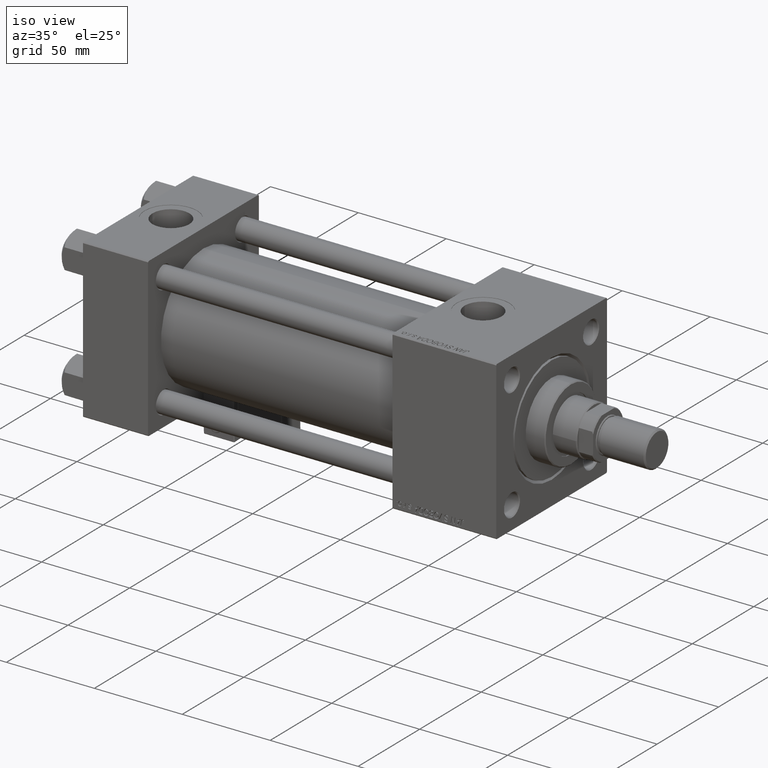
[diagram: clean part render]
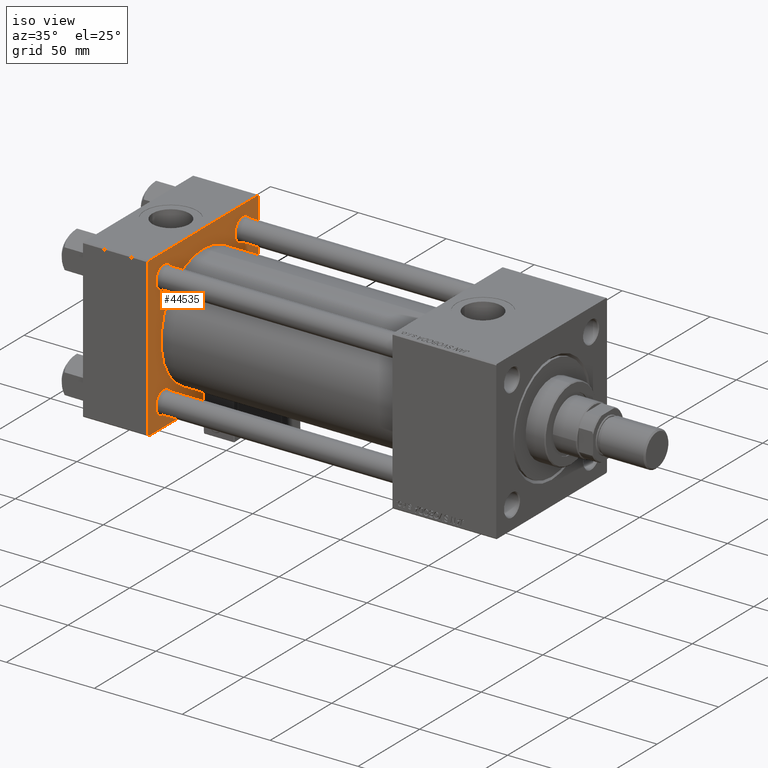
[diagram: same view with one face highlighted and labeled with its STEP entity id]
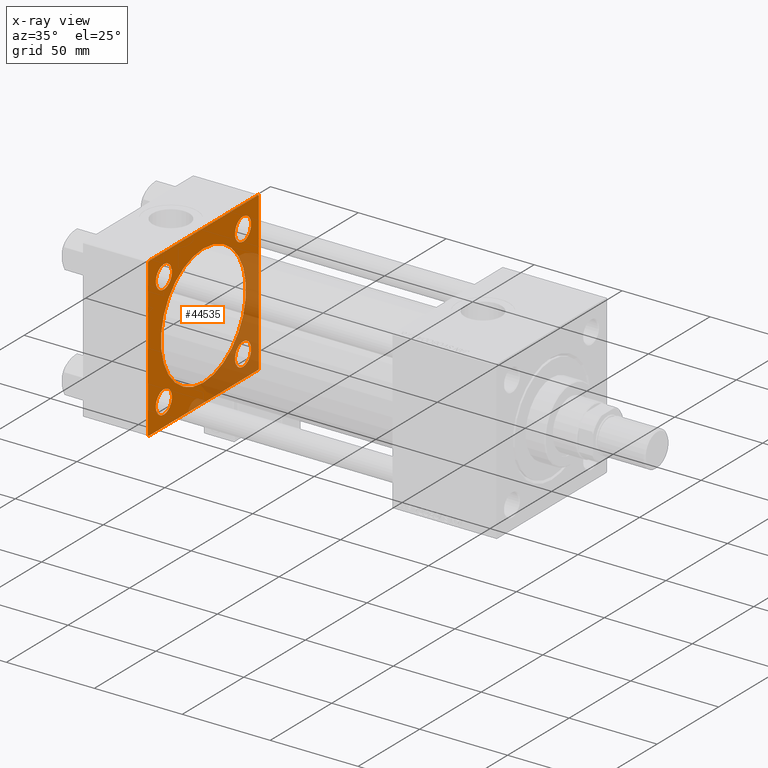
[diagram: x-ray of the same camera — body ghosted, the highlighted face saturated]
A machine part, iso view. The second image highlights one B-rep face of the part: STEP entity #44535.
The next image is the same camera in x-ray: the body ghosted, the highlighted face saturated — about 31% of this face is hidden behind the body in this view.
In plain terms, the highlighted planar face has unit normal (-1, 0, 0).
Its self-contained STEP definition (entity closure, byte-faithful):
#121 = VERTEX_POINT ( 'NONE', #46966 ) ;
#359 = LINE ( 'NONE', #34561, #5356 ) ;
#621 = CARTESIAN_POINT ( 'NONE',  ( 37.00000000000000000, -32.14999999999997726, 38.65000000000007674 ) ) ;
#681 = CARTESIAN_POINT ( 'NONE',  ( 37.00000000000000000, 44.99999999999998579, -44.99999999999998579 ) ) ;
#753 = LINE ( 'NONE', #38825, #26578 ) ;
#900 = CIRCLE ( 'NONE', #36143, 6.500000000000061284 ) ;
#1019 = AXIS2_PLACEMENT_3D ( 'NONE', #53210, #52938, #11015 ) ;
#1241 = LINE ( 'NONE', #34358, #15888 ) ;
#2458 = AXIS2_PLACEMENT_3D ( 'NONE', #26376, #51213, #13445 ) ;
#2502 = DIRECTION ( 'NONE',  ( -1.000000000000000000, 0.000000000000000000, -0.000000000000000000 ) ) ;
#2739 = CIRCLE ( 'NONE', #16852, 6.500000000000061284 ) ;
#2867 = DIRECTION ( 'NONE',  ( 0.000000000000000000, 0.000000000000000000, 1.000000000000000000 ) ) ;
#3612 = FACE_OUTER_BOUND ( 'NONE', #50820, .T. ) ;
#3666 = CIRCLE ( 'NONE', #1019, 6.500000000000061284 ) ;
#5356 = VECTOR ( 'NONE', #51389, 1000.000000000000114 ) ;
#5690 = CARTESIAN_POINT ( 'NONE',  ( 37.00000000000000000, -45.00000000000000000, -44.49999999999995737 ) ) ;
#6043 = CARTESIAN_POINT ( 'NONE',  ( 37.00000000000000711, -2.602085213965210642E-15, 0.000000000000000000 ) ) ;
#6364 = EDGE_CURVE ( 'NONE', #50095, #32201, #27291, .T. ) ;
#6937 = FACE_BOUND ( 'NONE', #43227, .T. ) ;
#7088 = CARTESIAN_POINT ( 'NONE',  ( 37.00000000000000000, -32.14999999999997726, -25.64999999999994884 ) ) ;
#8515 = ORIENTED_EDGE ( 'NONE', *, *, #15086, .T. ) ;
#8973 = CARTESIAN_POINT ( 'NONE',  ( 37.00000000000000000, 32.14999999999999147, 25.64999999999994529 ) ) ;
#9017 = CARTESIAN_POINT ( 'NONE',  ( 37.00000000000000711, -2.602085213965210642E-15, 0.000000000000000000 ) ) ;
#9680 = AXIS2_PLACEMENT_3D ( 'NONE', #38302, #12673, #33623 ) ;
#10031 = CARTESIAN_POINT ( 'NONE',  ( 37.00000000000000000, 32.14999999999999147, -25.64999999999994529 ) ) ;
#10852 = EDGE_CURVE ( 'NONE', #121, #53844, #29381, .T. ) ;
#10956 = VERTEX_POINT ( 'NONE', #8973 ) ;
#11015 = DIRECTION ( 'NONE',  ( 0.000000000000000000, 0.000000000000000000, 1.000000000000000000 ) ) ;
#11074 = CARTESIAN_POINT ( 'NONE',  ( 37.00000000000000000, 32.14999999999999147, 32.15000000000000568 ) ) ;
#11168 = VERTEX_POINT ( 'NONE', #52512 ) ;
#11225 = EDGE_LOOP ( 'NONE', ( #8515, #48789 ) ) ;
#12449 = EDGE_CURVE ( 'NONE', #48213, #10956, #43041, .T. ) ;
#12673 = DIRECTION ( 'NONE',  ( -1.000000000000000000, 0.000000000000000000, -0.000000000000000000 ) ) ;
#12886 = VERTEX_POINT ( 'NONE', #32777 ) ;
#13269 = EDGE_CURVE ( 'NONE', #38490, #11168, #22796, .T. ) ;
#13445 = DIRECTION ( 'NONE',  ( 0.000000000000000000, 0.000000000000000000, 1.000000000000000000 ) ) ;
#13657 = VERTEX_POINT ( 'NONE', #10031 ) ;
#13742 = VERTEX_POINT ( 'NONE', #45028 ) ;
#13992 = AXIS2_PLACEMENT_3D ( 'NONE', #11074, #2502, #45275 ) ;
#14725 = DIRECTION ( 'NONE',  ( -0.000000000000000000, -0.7071067811865425767, -0.7071067811865524577 ) ) ;
#15086 = EDGE_CURVE ( 'NONE', #34230, #13657, #29760, .T. ) ;
#15173 = ORIENTED_EDGE ( 'NONE', *, *, #15434, .T. ) ;
#15242 = DIRECTION ( 'NONE',  ( 0.000000000000000000, 0.000000000000000000, 1.000000000000000000 ) ) ;
#15434 = EDGE_CURVE ( 'NONE', #13742, #12886, #22709, .T. ) ;
#15888 = VECTOR ( 'NONE', #34634, 1000.000000000000000 ) ;
#16852 = AXIS2_PLACEMENT_3D ( 'NONE', #19372, #36185, #15242 ) ;
#17072 = EDGE_CURVE ( 'NONE', #53844, #13742, #22756, .T. ) ;
#17995 = VERTEX_POINT ( 'NONE', #5690 ) ;
#18003 = EDGE_CURVE ( 'NONE', #11168, #38490, #49250, .T. ) ;
#18351 = EDGE_LOOP ( 'NONE', ( #28857, #46801 ) ) ;
#19173 = EDGE_LOOP ( 'NONE', ( #20451, #54001 ) ) ;
#19183 = VERTEX_POINT ( 'NONE', #35093 ) ;
#19329 = AXIS2_PLACEMENT_3D ( 'NONE', #9017, #47345, #22232 ) ;
#19371 = ORIENTED_EDGE ( 'NONE', *, *, #6364, .T. ) ;
#19372 = CARTESIAN_POINT ( 'NONE',  ( 37.00000000000000000, 32.14999999999999147, 32.15000000000000568 ) ) ;
#19621 = FACE_BOUND ( 'NONE', #19173, .T. ) ;
#19894 = DIRECTION ( 'NONE',  ( -0.000000000000000000, 0.000000000000000000, 1.000000000000000000 ) ) ;
#20207 = ORIENTED_EDGE ( 'NONE', *, *, #18003, .F. ) ;
#20451 = ORIENTED_EDGE ( 'NONE', *, *, #45080, .T. ) ;
#21124 = CIRCLE ( 'NONE', #39613, 6.500000000000061284 ) ;
#21883 = CARTESIAN_POINT ( 'NONE',  ( 37.00000000000000000, 32.14999999999999147, 38.65000000000006963 ) ) ;
#22033 = EDGE_CURVE ( 'NONE', #17995, #28510, #359, .T. ) ;
#22097 = VERTEX_POINT ( 'NONE', #621 ) ;
#22173 = EDGE_CURVE ( 'NONE', #121, #48712, #51927, .T. ) ;
#22232 = DIRECTION ( 'NONE',  ( 0.000000000000000000, 0.000000000000000000, 1.000000000000000000 ) ) ;
#22370 = CARTESIAN_POINT ( 'NONE',  ( 37.00000000000000000, 44.99999999999998579, -44.49999999999995737 ) ) ;
#22709 = LINE ( 'NONE', #27383, #25344 ) ;
#22756 = LINE ( 'NONE', #44551, #30738 ) ;
#22796 = CIRCLE ( 'NONE', #28047, 34.50000000000000000 ) ;
#22815 = DIRECTION ( 'NONE',  ( -0.000000000000000000, 0.7071067811865474617, 0.7071067811865474617 ) ) ;
#23171 = EDGE_CURVE ( 'NONE', #10956, #48213, #2739, .T. ) ;
#23486 = DIRECTION ( 'NONE',  ( 0.000000000000000000, 0.000000000000000000, -1.000000000000000000 ) ) ;
#23722 = ORIENTED_EDGE ( 'NONE', *, *, #45167, .T. ) ;
#23725 = DIRECTION ( 'NONE',  ( -1.000000000000000000, 0.000000000000000000, -0.000000000000000000 ) ) ;
#23745 = DIRECTION ( 'NONE',  ( -1.000000000000000000, 0.000000000000000000, -0.000000000000000000 ) ) ;
#24154 = AXIS2_PLACEMENT_3D ( 'NONE', #52165, #23725, #52439 ) ;
#24246 = ORIENTED_EDGE ( 'NONE', *, *, #13269, .F. ) ;
#24292 = CARTESIAN_POINT ( 'NONE',  ( 37.00000000000000000, 44.49999999999998579, -44.99999999999998579 ) ) ;
#24567 = FACE_BOUND ( 'NONE', #52826, .T. ) ;
#24983 = LINE ( 'NONE', #681, #41706 ) ;
#25231 = CARTESIAN_POINT ( 'NONE',  ( 37.00000000000000000, -44.49999999999995737, -45.00000000000000000 ) ) ;
#25285 = ORIENTED_EDGE ( 'NONE', *, *, #42276, .T. ) ;
#25344 = VECTOR ( 'NONE', #14725, 1000.000000000000114 ) ;
#26376 = CARTESIAN_POINT ( 'NONE',  ( 37.00000000000000000, 32.14999999999999147, -32.15000000000000568 ) ) ;
#26578 = VECTOR ( 'NONE', #22815, 1000.000000000000114 ) ;
#27291 = CIRCLE ( 'NONE', #9680, 6.500000000000061284 ) ;
#27383 = CARTESIAN_POINT ( 'NONE',  ( 37.00000000000000000, -45.00000000000000711, 44.49999999999997158 ) ) ;
#27874 = FACE_BOUND ( 'NONE', #11225, .T. ) ;
#27959 = DIRECTION ( 'NONE',  ( 0.000000000000000000, -1.000000000000000000, -1.541976423090495387E-16 ) ) ;
#28047 = AXIS2_PLACEMENT_3D ( 'NONE', #6043, #35543, #43570 ) ;
#28510 = VERTEX_POINT ( 'NONE', #25231 ) ;
#28857 = ORIENTED_EDGE ( 'NONE', *, *, #23171, .T. ) ;
#29381 = LINE ( 'NONE', #46492, #51778 ) ;
#29718 = ORIENTED_EDGE ( 'NONE', *, *, #22033, .T. ) ;
#29760 = CIRCLE ( 'NONE', #2458, 6.500000000000061284 ) ;
#30043 = ORIENTED_EDGE ( 'NONE', *, *, #10852, .T. ) ;
#30738 = VECTOR ( 'NONE', #27959, 1000.000000000000000 ) ;
#30956 = CARTESIAN_POINT ( 'NONE',  ( 37.00000000000000000, 44.99999999999998579, 45.00000000000001421 ) ) ;
#31457 = ORIENTED_EDGE ( 'NONE', *, *, #42365, .T. ) ;
#32168 = EDGE_CURVE ( 'NONE', #13657, #34230, #32944, .T. ) ;
#32201 = VERTEX_POINT ( 'NONE', #47771 ) ;
#32658 = ORIENTED_EDGE ( 'NONE', *, *, #50939, .F. ) ;
#32777 = CARTESIAN_POINT ( 'NONE',  ( 37.00000000000000000, -45.00000000000000711, 44.49999999999997158 ) ) ;
#32944 = CIRCLE ( 'NONE', #24154, 6.500000000000061284 ) ;
#33254 = CARTESIAN_POINT ( 'NONE',  ( 37.00000000000000711, 1.622946243093158675E-15, -34.50000000000000000 ) ) ;
#33623 = DIRECTION ( 'NONE',  ( 0.000000000000000000, 0.000000000000000000, 1.000000000000000000 ) ) ;
#34230 = VERTEX_POINT ( 'NONE', #54618 ) ;
#34358 = CARTESIAN_POINT ( 'NONE',  ( 37.00000000000000000, -45.00000000000000711, 45.00000000000000000 ) ) ;
#34499 = AXIS2_PLACEMENT_3D ( 'NONE', #49676, #23745, #19894 ) ;
#34561 = CARTESIAN_POINT ( 'NONE',  ( 37.00000000000000000, -44.49999999999998579, -45.00000000000000000 ) ) ;
#34634 = DIRECTION ( 'NONE',  ( 0.000000000000000000, 7.709882115452476934E-17, -1.000000000000000000 ) ) ;
#35093 = CARTESIAN_POINT ( 'NONE',  ( 37.00000000000000000, -32.14999999999997726, 25.64999999999994884 ) ) ;
#35472 = DIRECTION ( 'NONE',  ( 0.000000000000000000, 0.000000000000000000, 1.000000000000000000 ) ) ;
#35543 = DIRECTION ( 'NONE',  ( 1.000000000000000000, -0.000000000000000000, 0.000000000000000000 ) ) ;
#35977 = EDGE_CURVE ( 'NONE', #22097, #19183, #21124, .T. ) ;
#36143 = AXIS2_PLACEMENT_3D ( 'NONE', #48933, #40934, #2867 ) ;
#36167 = FACE_BOUND ( 'NONE', #18351, .T. ) ;
#36185 = DIRECTION ( 'NONE',  ( -1.000000000000000000, 0.000000000000000000, -0.000000000000000000 ) ) ;
#38302 = CARTESIAN_POINT ( 'NONE',  ( 37.00000000000000000, -32.14999999999997726, -32.15000000000001279 ) ) ;
#38335 = VERTEX_POINT ( 'NONE', #24292 ) ;
#38490 = VERTEX_POINT ( 'NONE', #33254 ) ;
#38637 = CARTESIAN_POINT ( 'NONE',  ( 37.00000000000000000, 44.49999999999998579, 45.00000000000001421 ) ) ;
#38825 = CARTESIAN_POINT ( 'NONE',  ( 37.00000000000000000, 44.99999999999998579, -44.49999999999998579 ) ) ;
#39432 = ORIENTED_EDGE ( 'NONE', *, *, #22173, .F. ) ;
#39613 = AXIS2_PLACEMENT_3D ( 'NONE', #52569, #43762, #35472 ) ;
#40568 = VECTOR ( 'NONE', #23486, 1000.000000000000000 ) ;
#40934 = DIRECTION ( 'NONE',  ( -1.000000000000000000, 0.000000000000000000, -0.000000000000000000 ) ) ;
#41706 = VECTOR ( 'NONE', #46241, 1000.000000000000000 ) ;
#42276 = EDGE_CURVE ( 'NONE', #12886, #17995, #1241, .T. ) ;
#42365 = EDGE_CURVE ( 'NONE', #32201, #50095, #900, .T. ) ;
#43041 = CIRCLE ( 'NONE', #13992, 6.500000000000061284 ) ;
#43227 = EDGE_LOOP ( 'NONE', ( #20207, #24246 ) ) ;
#43570 = DIRECTION ( 'NONE',  ( 0.000000000000000000, 0.000000000000000000, 1.000000000000000000 ) ) ;
#43762 = DIRECTION ( 'NONE',  ( -1.000000000000000000, 0.000000000000000000, -0.000000000000000000 ) ) ;
#44174 = ORIENTED_EDGE ( 'NONE', *, *, #17072, .T. ) ;
#44535 = ADVANCED_FACE ( 'NONE', ( #24567, #27874, #19621, #36167, #6937, #3612 ), #44729, .F. ) ;
#44551 = CARTESIAN_POINT ( 'NONE',  ( 37.00000000000000000, 44.99999999999998579, 45.00000000000001421 ) ) ;
#44729 = PLANE ( 'NONE',  #34499 ) ;
#45028 = CARTESIAN_POINT ( 'NONE',  ( 37.00000000000000000, -44.49999999999995737, 45.00000000000000000 ) ) ;
#45080 = EDGE_CURVE ( 'NONE', #19183, #22097, #3666, .T. ) ;
#45167 = EDGE_CURVE ( 'NONE', #38335, #48712, #753, .T. ) ;
#45275 = DIRECTION ( 'NONE',  ( 0.000000000000000000, 0.000000000000000000, 1.000000000000000000 ) ) ;
#46241 = DIRECTION ( 'NONE',  ( 0.000000000000000000, -1.000000000000000000, -1.541976423090495633E-16 ) ) ;
#46492 = CARTESIAN_POINT ( 'NONE',  ( 37.00000000000000000, 44.49999999999998579, 45.00000000000001421 ) ) ;
#46801 = ORIENTED_EDGE ( 'NONE', *, *, #12449, .T. ) ;
#46966 = CARTESIAN_POINT ( 'NONE',  ( 37.00000000000000000, 44.99999999999998579, 44.50000000000001421 ) ) ;
#47345 = DIRECTION ( 'NONE',  ( 1.000000000000000000, -0.000000000000000000, 0.000000000000000000 ) ) ;
#47771 = CARTESIAN_POINT ( 'NONE',  ( 37.00000000000000000, -32.14999999999997726, -38.65000000000007674 ) ) ;
#48213 = VERTEX_POINT ( 'NONE', #21883 ) ;
#48712 = VERTEX_POINT ( 'NONE', #22370 ) ;
#48789 = ORIENTED_EDGE ( 'NONE', *, *, #32168, .T. ) ;
#48933 = CARTESIAN_POINT ( 'NONE',  ( 37.00000000000000000, -32.14999999999997726, -32.15000000000001279 ) ) ;
#49250 = CIRCLE ( 'NONE', #19329, 34.50000000000000000 ) ;
#49676 = CARTESIAN_POINT ( 'NONE',  ( 37.00000000000000000, 0.000000000000000000, 0.000000000000000000 ) ) ;
#50095 = VERTEX_POINT ( 'NONE', #7088 ) ;
#50619 = DIRECTION ( 'NONE',  ( 0.000000000000000000, -0.7071067811865474617, 0.7071067811865474617 ) ) ;
#50820 = EDGE_LOOP ( 'NONE', ( #32658, #23722, #39432, #30043, #44174, #15173, #25285, #29718 ) ) ;
#50939 = EDGE_CURVE ( 'NONE', #38335, #28510, #24983, .T. ) ;
#51213 = DIRECTION ( 'NONE',  ( -1.000000000000000000, 0.000000000000000000, -0.000000000000000000 ) ) ;
#51389 = DIRECTION ( 'NONE',  ( 0.000000000000000000, 0.7071067811865474617, -0.7071067811865474617 ) ) ;
#51778 = VECTOR ( 'NONE', #50619, 1000.000000000000114 ) ;
#51927 = LINE ( 'NONE', #30956, #40568 ) ;
#52165 = CARTESIAN_POINT ( 'NONE',  ( 37.00000000000000000, 32.14999999999999147, -32.15000000000000568 ) ) ;
#52439 = DIRECTION ( 'NONE',  ( 0.000000000000000000, 0.000000000000000000, 1.000000000000000000 ) ) ;
#52512 = CARTESIAN_POINT ( 'NONE',  ( 37.00000000000000711, -2.602085213965210642E-15, 34.50000000000000000 ) ) ;
#52569 = CARTESIAN_POINT ( 'NONE',  ( 37.00000000000000000, -32.14999999999997726, 32.15000000000001279 ) ) ;
#52826 = EDGE_LOOP ( 'NONE', ( #31457, #19371 ) ) ;
#52938 = DIRECTION ( 'NONE',  ( -1.000000000000000000, 0.000000000000000000, -0.000000000000000000 ) ) ;
#53210 = CARTESIAN_POINT ( 'NONE',  ( 37.00000000000000000, -32.14999999999997726, 32.15000000000001279 ) ) ;
#53844 = VERTEX_POINT ( 'NONE', #38637 ) ;
#54001 = ORIENTED_EDGE ( 'NONE', *, *, #35977, .T. ) ;
#54618 = CARTESIAN_POINT ( 'NONE',  ( 37.00000000000000000, 32.14999999999999147, -38.65000000000006963 ) ) ;